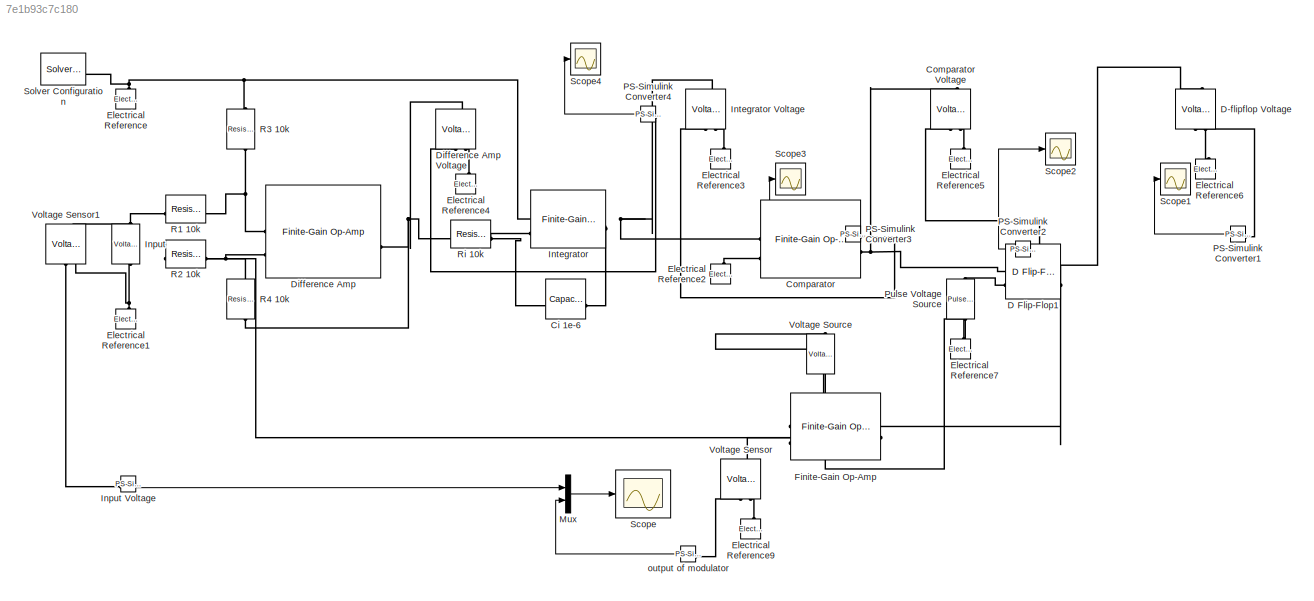
MODEL slx_7e1b93c7c180
KIND model
CONFIG AbsTol = 1e-3
CONFIG EnableMultiTasking = off
CONFIG FixedStep = auto
CONFIG MaxStep = auto
CONFIG MinStep = auto
CONFIG RelTol = 1e-3
CONFIG SampleTimeConstraint = Unconstrained
CONFIG SolverName = VariableStepAuto
CONFIG StartTime = 0.0
CONFIG StopTime = 10.0
BLOCK [Reference] Ci 1e-6  REF=fl_lib/Electrical/Electrical Elements/Capacitor
  SourceBlock = fl_lib/Electrical/Electrical Elements/Capacitor
  SourceType = Capacitor
BLOCK [Reference] Comparator  REF=ee_lib/Integrated Circuits/Finite-Gain Op-Amp
  SourceBlock = ee_lib/Integrated Circuits/Finite-Gain Op-Amp
  SourceType = Finite-Gain Op-Amp
BLOCK [Reference] Comparator Voltage  REF=fl_lib/Electrical/Electrical Sensors/Voltage Sensor
  NameLocation = right
  SourceBlock = fl_lib/Electrical/Electrical Sensors/Voltage Sensor
  SourceType = Voltage Sensor
BLOCK [Reference] D Flip-Flop1  REF=ee_lib/Integrated Circuits/Logic/D Flip-Flop
  SourceBlock = ee_lib/Integrated Circuits/Logic/D Flip-Flop
  SourceType = D Flip-Flop
BLOCK [Reference] D-flipflop Voltage  REF=fl_lib/Electrical/Electrical Sensors/Voltage Sensor
  NameLocation = right
  SourceBlock = fl_lib/Electrical/Electrical Sensors/Voltage Sensor
  SourceType = Voltage Sensor
BLOCK [Reference] Difference Amp  REF=ee_lib/Integrated Circuits/Finite-Gain Op-Amp
  SourceBlock = ee_lib/Integrated Circuits/Finite-Gain Op-Amp
  SourceType = Finite-Gain Op-Amp
BLOCK [Reference] Difference Amp Voltage  REF=fl_lib/Electrical/Electrical Sensors/Voltage Sensor
  NameLocation = right
  SourceBlock = fl_lib/Electrical/Electrical Sensors/Voltage Sensor
  SourceType = Voltage Sensor
BLOCK [Reference] Electrical Reference  REF=fl_lib/Electrical/Electrical Elements/Electrical Reference
  NameLocation = right
  SourceBlock = fl_lib/Electrical/Electrical Elements/Electrical Reference
  SourceType = Electrical Reference
BLOCK [Reference] Electrical Reference1  REF=fl_lib/Electrical/Electrical Elements/Electrical Reference
  NameLocation = right
  SourceBlock = fl_lib/Electrical/Electrical Elements/Electrical Reference
  SourceType = Electrical Reference
BLOCK [Reference] Electrical Reference2  REF=fl_lib/Electrical/Electrical Elements/Electrical Reference
  NameLocation = right
  SourceBlock = fl_lib/Electrical/Electrical Elements/Electrical Reference
  SourceType = Electrical Reference
BLOCK [Reference] Electrical Reference3  REF=fl_lib/Electrical/Electrical Elements/Electrical Reference
  NameLocation = right
  SourceBlock = fl_lib/Electrical/Electrical Elements/Electrical Reference
  SourceType = Electrical Reference
BLOCK [Reference] Electrical Reference4  REF=fl_lib/Electrical/Electrical Elements/Electrical Reference
  NameLocation = right
  SourceBlock = fl_lib/Electrical/Electrical Elements/Electrical Reference
  SourceType = Electrical Reference
BLOCK [Reference] Electrical Reference5  REF=fl_lib/Electrical/Electrical Elements/Electrical Reference
  NameLocation = right
  SourceBlock = fl_lib/Electrical/Electrical Elements/Electrical Reference
  SourceType = Electrical Reference
BLOCK [Reference] Electrical Reference6  REF=fl_lib/Electrical/Electrical Elements/Electrical Reference
  NameLocation = right
  SourceBlock = fl_lib/Electrical/Electrical Elements/Electrical Reference
  SourceType = Electrical Reference
BLOCK [Reference] Electrical Reference7  REF=fl_lib/Electrical/Electrical Elements/Electrical Reference
  NameLocation = right
  SourceBlock = fl_lib/Electrical/Electrical Elements/Electrical Reference
  SourceType = Electrical Reference
BLOCK [Reference] Electrical Reference9  REF=fl_lib/Electrical/Electrical Elements/Electrical Reference
  NameLocation = right
  SourceBlock = fl_lib/Electrical/Electrical Elements/Electrical Reference
  SourceType = Electrical Reference
BLOCK [Reference] Finite-Gain Op-Amp  REF=ee_lib/Integrated Circuits/Finite-Gain Op-Amp
  NameLocation = top
  SourceBlock = ee_lib/Integrated Circuits/Finite-Gain Op-Amp
  SourceType = Finite-Gain Op-Amp
BLOCK [Reference] Input  REF=ee_lib/Sources/Voltage Source
  NameLocation = right
  SourceBlock = ee_lib/Sources/Voltage Source
  SourceType = Voltage Source
BLOCK [Reference] Input Voltage  REF=nesl_utility/PS-Simulink
Converter
  SourceBlock = nesl_utility/PS-Simulink\nConverter
  SourceType = PS-Simulink\nConverter
BLOCK [Reference] Integrator  REF=ee_lib/Integrated Circuits/Finite-Gain Op-Amp
  SourceBlock = ee_lib/Integrated Circuits/Finite-Gain Op-Amp
  SourceType = Finite-Gain Op-Amp
BLOCK [Reference] Integrator Voltage  REF=fl_lib/Electrical/Electrical Sensors/Voltage Sensor
  NameLocation = right
  SourceBlock = fl_lib/Electrical/Electrical Sensors/Voltage Sensor
  SourceType = Voltage Sensor
BLOCK [Mux] Mux
  DisplayOption = bar
  Inputs = 2
BLOCK [Reference] PS-Simulink Converter1  REF=nesl_utility/PS-Simulink
Converter
  NameLocation = top
  SourceBlock = nesl_utility/PS-Simulink\nConverter
  SourceType = PS-Simulink\nConverter
BLOCK [Reference] PS-Simulink Converter2  REF=nesl_utility/PS-Simulink
Converter
  NameLocation = top
  SourceBlock = nesl_utility/PS-Simulink\nConverter
  SourceType = PS-Simulink\nConverter
BLOCK [Reference] PS-Simulink Converter3  REF=nesl_utility/PS-Simulink
Converter
  NameLocation = top
  SourceBlock = nesl_utility/PS-Simulink\nConverter
  SourceType = PS-Simulink\nConverter
BLOCK [Reference] PS-Simulink Converter4  REF=nesl_utility/PS-Simulink
Converter
  NameLocation = top
  SourceBlock = nesl_utility/PS-Simulink\nConverter
  SourceType = PS-Simulink\nConverter
BLOCK [Reference] Pulse Voltage Source  REF=ee_lib/Additional
Components/SPICE Sources/Pulse Voltage Source
  LibrarySourceBlock = ee_lib/Sources/Pulse Voltage Source
  NameLocation = right
  SourceBlock = ee_lib/Additional\nComponents/SPICE Sources/Pulse Voltage Source
  SourceType = Pulse Voltage Source
BLOCK [Reference] R1 10k  REF=fl_lib/Electrical/Electrical Elements/Resistor
  SourceBlock = fl_lib/Electrical/Electrical Elements/Resistor
  SourceType = Resistor
BLOCK [Reference] R2 10k  REF=fl_lib/Electrical/Electrical Elements/Resistor
  SourceBlock = fl_lib/Electrical/Electrical Elements/Resistor
  SourceType = Resistor
BLOCK [Reference] R3 10k  REF=fl_lib/Electrical/Electrical Elements/Resistor
  NameLocation = left
  SourceBlock = fl_lib/Electrical/Electrical Elements/Resistor
  SourceType = Resistor
BLOCK [Reference] R4 10k  REF=fl_lib/Electrical/Electrical Elements/Resistor
  NameLocation = left
  SourceBlock = fl_lib/Electrical/Electrical Elements/Resistor
  SourceType = Resistor
BLOCK [Reference] Ri 10k  REF=fl_lib/Electrical/Electrical Elements/Resistor
  SourceBlock = fl_lib/Electrical/Electrical Elements/Resistor
  SourceType = Resistor
BLOCK [Scope] Scope
  Floating = off
  NumInputPorts = 1
  ScopeSpecificationString = Simulink.scopes.TimeScopeBlockCfg('CurrentConfiguration', extmgr.ConfigurationSet(extmgr.Configuration('Core','General UI',true),extmgr.Configuration('Core','Source UI',true),extmgr.Configuration('Sources','WiredSimulink',true),extmgr.Configuration('Visuals','Time Domain',true,'SerializedDisplays',{struct('MinYLimReal','-4.09699','MaxYLimReal','5.00000','YLabelReal','','MinYLimMag','0.00000','MaxY...<+1487ch>
BLOCK [Scope] Scope1
  Floating = off
  NumInputPorts = 1
  ScopeSpecificationString = Simulink.scopes.TimeScopeBlockCfg('CurrentConfiguration', extmgr.ConfigurationSet(extmgr.Configuration('Core','General UI',true),extmgr.Configuration('Core','Source UI',true),extmgr.Configuration('Sources','WiredSimulink',true,'DataLoggingVariableName','ScopeData1'),extmgr.Configuration('Visuals','Time Domain',true,'SerializedDisplays',{struct('MinYLimReal','-0.625','MaxYLimReal','5.3755','YLabelR...<+1510ch>
BLOCK [Scope] Scope2
  Floating = off
  NumInputPorts = 1
  ScopeSpecificationString = Simulink.scopes.TimeScopeBlockCfg('CurrentConfiguration', extmgr.ConfigurationSet(extmgr.Configuration('Core','General UI',true),extmgr.Configuration('Core','Source UI',true),extmgr.Configuration('Sources','WiredSimulink',true,'DataLoggingVariableName','ScopeData2'),extmgr.Configuration('Visuals','Time Domain',true,'SerializedDisplays',{struct('MinYLimReal','-0.62502','MaxYLimReal','5.625','YLabel...<+1491ch>
BLOCK [Scope] Scope3
  Floating = off
  NumInputPorts = 1
  ScopeSpecificationString = Simulink.scopes.TimeScopeBlockCfg('CurrentConfiguration', extmgr.ConfigurationSet(extmgr.Configuration('Core','General UI',true),extmgr.Configuration('Core','Source UI',true),extmgr.Configuration('Sources','WiredSimulink',true,'DataLoggingVariableName','ScopeData3'),extmgr.Configuration('Visuals','Time Domain',true,'SerializedDisplays',{struct('MinYLimReal','0.02878','MaxYLimReal','1.78004','YLabe...<+1487ch>
BLOCK [Scope] Scope4
  Floating = off
  NumInputPorts = 1
  ScopeSpecificationString = Simulink.scopes.TimeScopeBlockCfg('CurrentConfiguration', extmgr.ConfigurationSet(extmgr.Configuration('Core','General UI',true),extmgr.Configuration('Core','Source UI',true),extmgr.Configuration('Sources','WiredSimulink',true,'DataLoggingVariableName','ScopeData4'),extmgr.Configuration('Visuals','Time Domain',true,'SerializedDisplays',{struct('MinYLimReal','-11.15784','MaxYLimReal','5.51412','YLa...<+1493ch>
BLOCK [Reference] Solver Configuration  REF=nesl_utility/Solver
Configuration
  SourceBlock = nesl_utility/Solver\nConfiguration
  SourceType = Solver\nConfiguration
BLOCK [Reference] Voltage Sensor  REF=fl_lib/Electrical/Electrical Sensors/Voltage Sensor
  NameLocation = right
  SourceBlock = fl_lib/Electrical/Electrical Sensors/Voltage Sensor
  SourceType = Voltage Sensor
BLOCK [Reference] Voltage Sensor1  REF=fl_lib/Electrical/Electrical Sensors/Voltage Sensor
  NameLocation = right
  SourceBlock = fl_lib/Electrical/Electrical Sensors/Voltage Sensor
  SourceType = Voltage Sensor
BLOCK [Reference] Voltage Source  REF=ee_lib/Sources/Voltage Source
  NameLocation = right
  SourceBlock = ee_lib/Sources/Voltage Source
  SourceType = Voltage Source
BLOCK [Reference] output of modulator  REF=nesl_utility/PS-Simulink
Converter
  NameLocation = top
  SourceBlock = nesl_utility/PS-Simulink\nConverter
  SourceType = PS-Simulink\nConverter
LINE Input Voltage:1 -> Mux:1
LINE Mux:1 -> Scope:1
LINE PS-Simulink Converter1:1 -> Scope1:1
LINE PS-Simulink Converter2:1 -> Scope2:1
LINE PS-Simulink Converter3:1 -> Scope3:1
LINE PS-Simulink Converter4:1 -> Scope4:1
LINE output of modulator:1 -> Mux:2
PNET net1: Ci 1e-6:LConn1 -- Integrator:LConn2 -- Ri 10k:RConn1
PNET net2: Ci 1e-6:RConn1 -- Comparator:LConn1 -- Integrator Voltage:LConn1 -- Integrator:RConn1
PNET net3: Comparator Voltage:LConn1 -- Comparator:RConn1 -- D Flip-Flop1:LConn1
PLINE Comparator Voltage:RConn1 -- PS-Simulink Converter2:LConn1
PLINE Comparator Voltage:RConn2 -- Electrical Reference5:LConn1
PLINE Comparator:LConn2 -- Electrical Reference2:LConn1
PLINE D Flip-Flop1:LConn2 -- Pulse Voltage Source:LConn1
PNET net4: D Flip-Flop1:RConn2 -- D-flipflop Voltage:LConn1 -- Finite-Gain Op-Amp:LConn1
PLINE D-flipflop Voltage:RConn1 -- PS-Simulink Converter1:LConn1
PLINE D-flipflop Voltage:RConn2 -- Electrical Reference6:LConn1
PNET net5: Difference Amp Voltage:LConn1 -- Difference Amp:RConn1 -- R4 10k:RConn1 -- Ri 10k:LConn1
PLINE Difference Amp Voltage:RConn1 -- PS-Simulink Converter4:LConn1
PLINE Difference Amp Voltage:RConn2 -- Electrical Reference4:LConn1
PNET net6: Difference Amp:LConn1 -- R1 10k:RConn1 -- R3 10k:RConn1
PNET net7: Difference Amp:LConn2 -- R2 10k:RConn1 -- R4 10k:LConn1
PNET net8: Electrical Reference1:LConn1 -- Input:RConn1 -- Voltage Sensor1:RConn2
PLINE Electrical Reference3:LConn1 -- Integrator Voltage:RConn2
PNET net9: Electrical Reference7:LConn1 -- Pulse Voltage Source:RConn1 -- Voltage Source:RConn1
PLINE Electrical Reference9:LConn1 -- Voltage Sensor:RConn2
PNET net10: Electrical Reference:LConn1 -- Integrator:LConn1 -- R3 10k:LConn1 -- Solver Configuration:RConn1
PLINE Finite-Gain Op-Amp:LConn2 -- Voltage Source:LConn1
PNET net11: Finite-Gain Op-Amp:RConn1 -- R2 10k:LConn1 -- Voltage Sensor:LConn1
PLINE Input Voltage:LConn1 -- Voltage Sensor1:RConn1
PNET net12: Input:LConn1 -- R1 10k:LConn1 -- Voltage Sensor1:LConn1
PLINE Integrator Voltage:RConn1 -- PS-Simulink Converter3:LConn1
PLINE Voltage Sensor:RConn1 -- output of modulator:LConn1
note: PNET lines group multi-terminal physical nets as a canonical sorted terminal list (undirected conserving connections); 2-terminal nets keep the pairwise PLINE form
